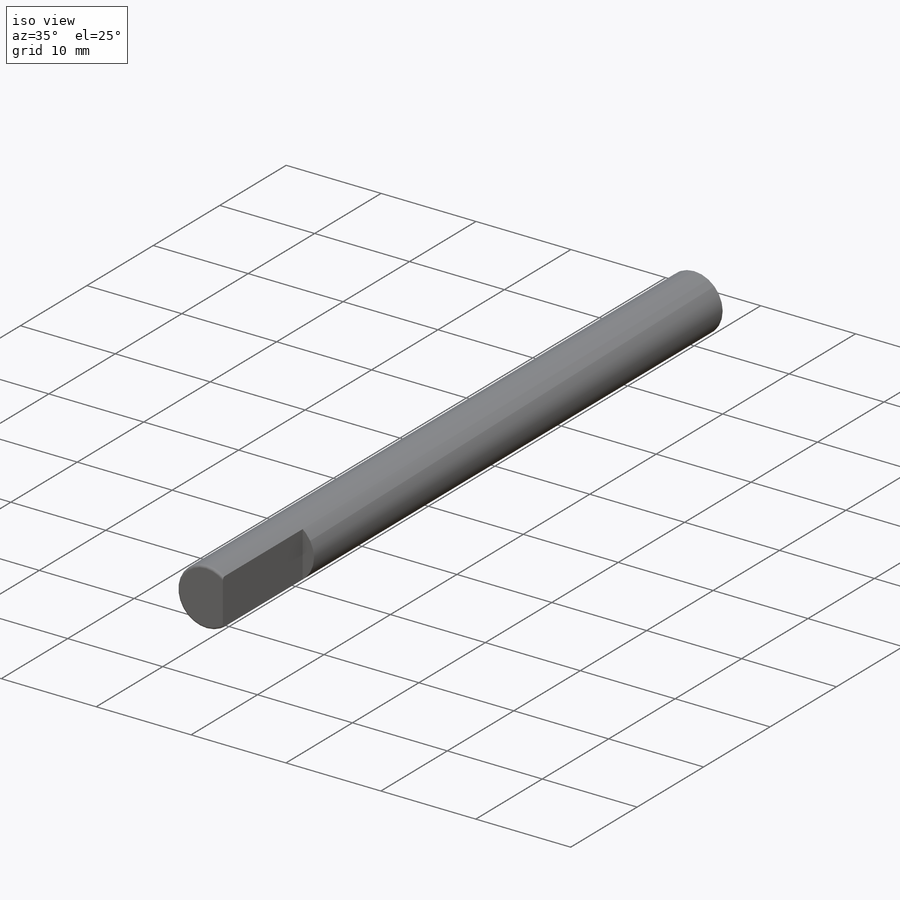
[diagram: iso view]
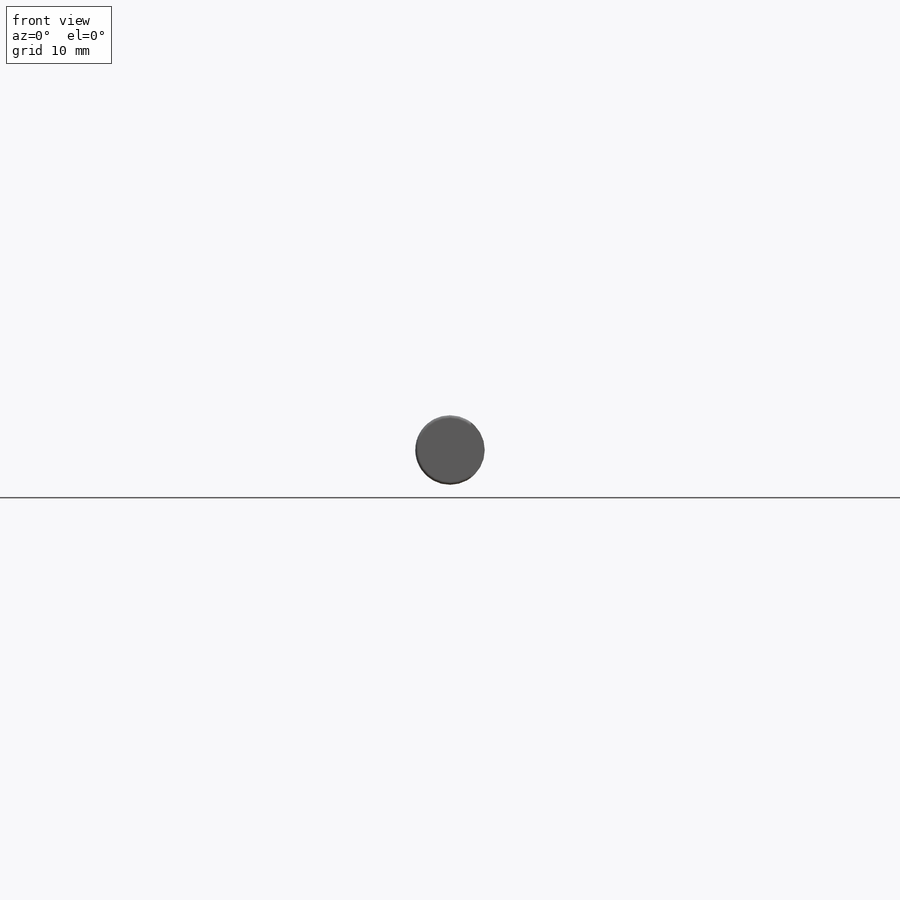
[diagram: front view]
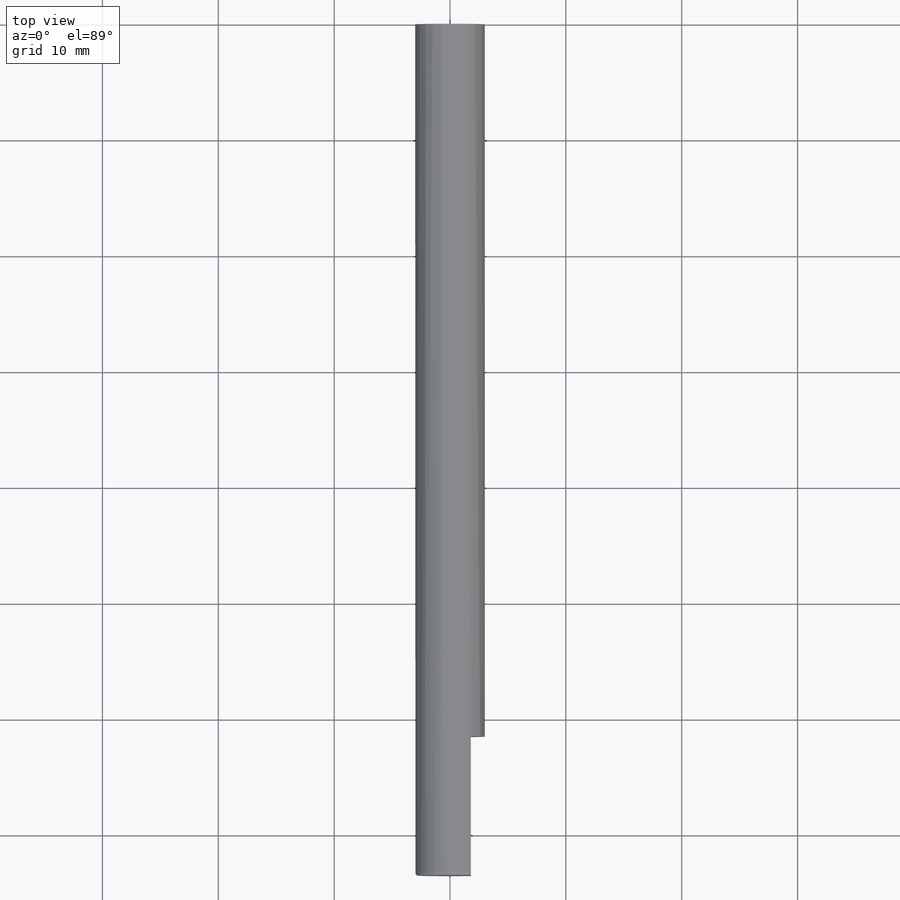
[diagram: top view]
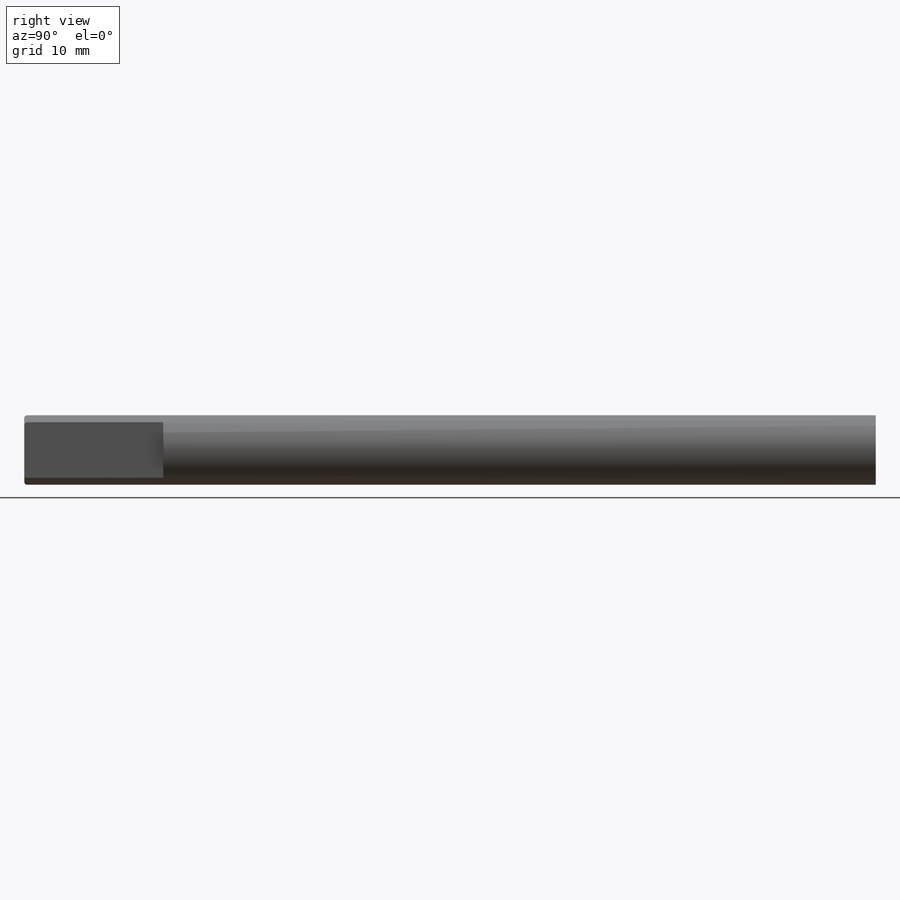
[diagram: right view]
SOLIDWORKS PART (.sldprt)
format: sldprt  version: not decoded by parser v0  size: 157,184 bytes
history: native  units: mm
features: plane x3, sketch x3, material x1, extrude x1, fillet x1, cut_extrude x1 (+9 scaffold rows collapsed)
feature tree (19):
  scaffold x9  (default folders/planes/origin — collapsed)
  material  "Acero aleado"
  plane  "Alzado"
  plane  "Planta"
  plane  "Vista lateral"
  sketch  "Croquis1"  dims[D1=6.0mm]
  extrude  "Saliente-Extruir1"  Depth=73.5mm
  sketch  "Croquis2"  dims[D1=2.0mm]
  fillet  "Redondeo1"  Radius=0.25mm
  sketch  "Sketch1"  dims[D1=1.8mm D2=10.0mm]
  cut_extrude  "Cut-Extrude1"  Depth=12mm
decode coverage: 6 of 6 modeling features carry decoded parameters
note: suppression state not decoded; provenance and decode notes live in map.json
